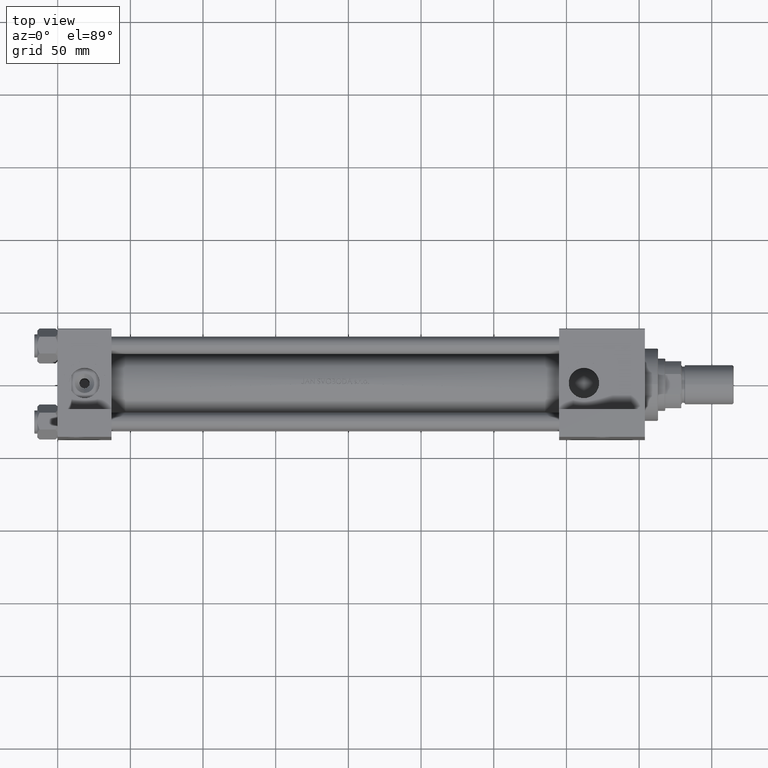
[diagram: clean part render]
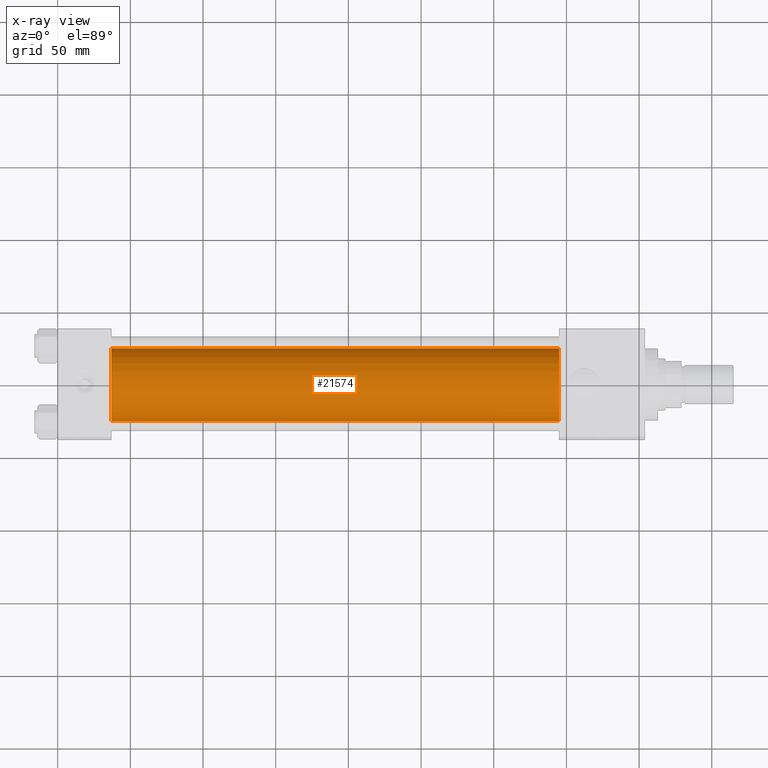
[diagram: x-ray — body ghosted, one internal face saturated and labeled with its STEP entity id]
A machine part, top view, then the same camera in x-ray: the body is ghosted and one INTERNAL B-rep face — a face not visible from any outside direction — is saturated and labeled: STEP entity #21574.
In plain terms, the highlighted cylindrical surface (edge-blend (fillet) strip) has radius 25 mm, axis along (-1, -0, 0).
Its self-contained STEP definition (entity closure, byte-faithful):
#1637 = AXIS2_PLACEMENT_3D ( 'NONE', #25074, #2281, #9366 ) ;
#2281 = DIRECTION ( 'NONE',  ( 1.000000000000000000, 0.000000000000000000, 0.000000000000000000 ) ) ;
#2583 = CARTESIAN_POINT ( 'NONE',  ( 37.00000000000000000, 3.061616997868383043E-15, -25.50000000000000355 ) ) ;
#3309 = CYLINDRICAL_SURFACE ( 'NONE', #3335, 25.00000000000000000 ) ;
#3335 = AXIS2_PLACEMENT_3D ( 'NONE', #46078, #14442, #41770 ) ;
#3536 = LINE ( 'NONE', #26096, #49734 ) ;
#5432 = CARTESIAN_POINT ( 'NONE',  ( 345.0000000000000000, 0.000000000000000000, -0.5000000000000004441 ) ) ;
#5499 = VERTEX_POINT ( 'NONE', #2583 ) ;
#6396 = EDGE_LOOP ( 'NONE', ( #40395, #23038, #28015, #36933 ) ) ;
#8612 = DIRECTION ( 'NONE',  ( -1.000000000000000000, -0.000000000000000000, -0.000000000000000000 ) ) ;
#9366 = DIRECTION ( 'NONE',  ( 0.000000000000000000, 0.000000000000000000, -1.000000000000000000 ) ) ;
#9733 = DIRECTION ( 'NONE',  ( 0.000000000000000000, 0.000000000000000000, -1.000000000000000000 ) ) ;
#14442 = DIRECTION ( 'NONE',  ( -1.000000000000000000, -0.000000000000000000, -0.000000000000000000 ) ) ;
#17219 = CIRCLE ( 'NONE', #19633, 25.00000000000000000 ) ;
#17515 = CARTESIAN_POINT ( 'NONE',  ( 345.0000000000000000, 3.061616997868383043E-15, -25.50000000000000355 ) ) ;
#19633 = AXIS2_PLACEMENT_3D ( 'NONE', #5432, #32518, #9733 ) ;
#19987 = EDGE_CURVE ( 'NONE', #26071, #5499, #35600, .T. ) ;
#21574 = ADVANCED_FACE ( 'NONE', ( #30656 ), #3309, .F. ) ;
#22811 = VECTOR ( 'NONE', #8612, 1000.000000000000000 ) ;
#23038 = ORIENTED_EDGE ( 'NONE', *, *, #50072, .T. ) ;
#24903 = EDGE_CURVE ( 'NONE', #29123, #26071, #28136, .T. ) ;
#25010 = CARTESIAN_POINT ( 'NONE',  ( 37.00000000000000000, 0.000000000000000000, 24.50000000000000000 ) ) ;
#25074 = CARTESIAN_POINT ( 'NONE',  ( 37.00000000000000000, 0.000000000000000000, -0.5000000000000004441 ) ) ;
#26071 = VERTEX_POINT ( 'NONE', #25010 ) ;
#26096 = CARTESIAN_POINT ( 'NONE',  ( 345.0000000000000000, 3.061616997868383043E-15, -25.50000000000000355 ) ) ;
#28015 = ORIENTED_EDGE ( 'NONE', *, *, #19987, .F. ) ;
#28136 = LINE ( 'NONE', #31902, #22811 ) ;
#29123 = VERTEX_POINT ( 'NONE', #34315 ) ;
#30656 = FACE_OUTER_BOUND ( 'NONE', #6396, .T. ) ;
#31902 = CARTESIAN_POINT ( 'NONE',  ( 345.0000000000000000, 0.000000000000000000, 24.50000000000000000 ) ) ;
#32518 = DIRECTION ( 'NONE',  ( 1.000000000000000000, 0.000000000000000000, 0.000000000000000000 ) ) ;
#34315 = CARTESIAN_POINT ( 'NONE',  ( 345.0000000000000000, 0.000000000000000000, 24.50000000000000000 ) ) ;
#35600 = CIRCLE ( 'NONE', #1637, 25.00000000000000000 ) ;
#36933 = ORIENTED_EDGE ( 'NONE', *, *, #24903, .F. ) ;
#39042 = EDGE_CURVE ( 'NONE', #29123, #46771, #17219, .T. ) ;
#40395 = ORIENTED_EDGE ( 'NONE', *, *, #39042, .T. ) ;
#41249 = DIRECTION ( 'NONE',  ( -1.000000000000000000, -0.000000000000000000, -0.000000000000000000 ) ) ;
#41770 = DIRECTION ( 'NONE',  ( 0.000000000000000000, 0.000000000000000000, 1.000000000000000000 ) ) ;
#46078 = CARTESIAN_POINT ( 'NONE',  ( 345.0000000000000000, 0.000000000000000000, -0.5000000000000004441 ) ) ;
#46771 = VERTEX_POINT ( 'NONE', #17515 ) ;
#49734 = VECTOR ( 'NONE', #41249, 1000.000000000000000 ) ;
#50072 = EDGE_CURVE ( 'NONE', #46771, #5499, #3536, .T. ) ;